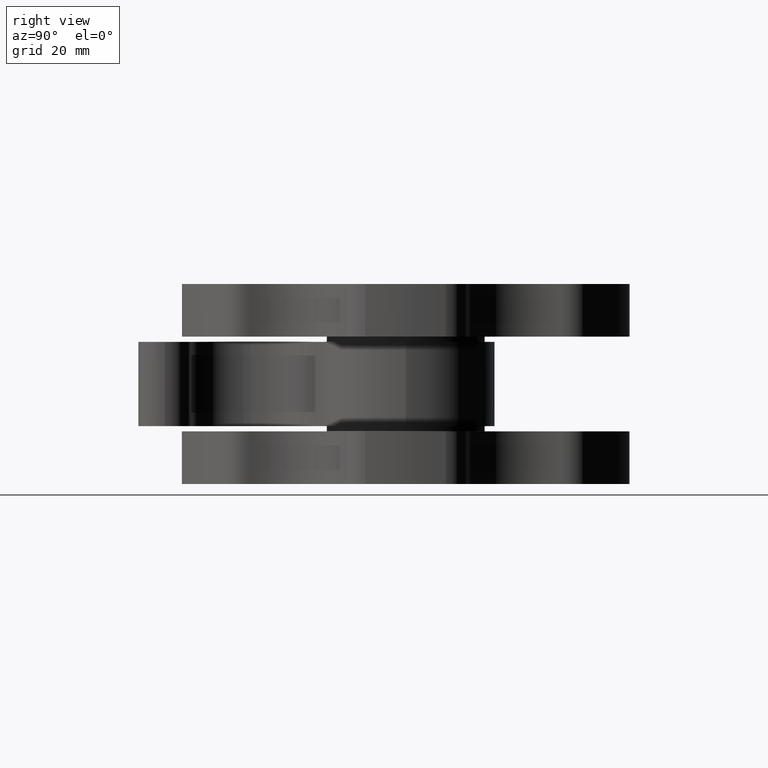
[diagram: clean part render]
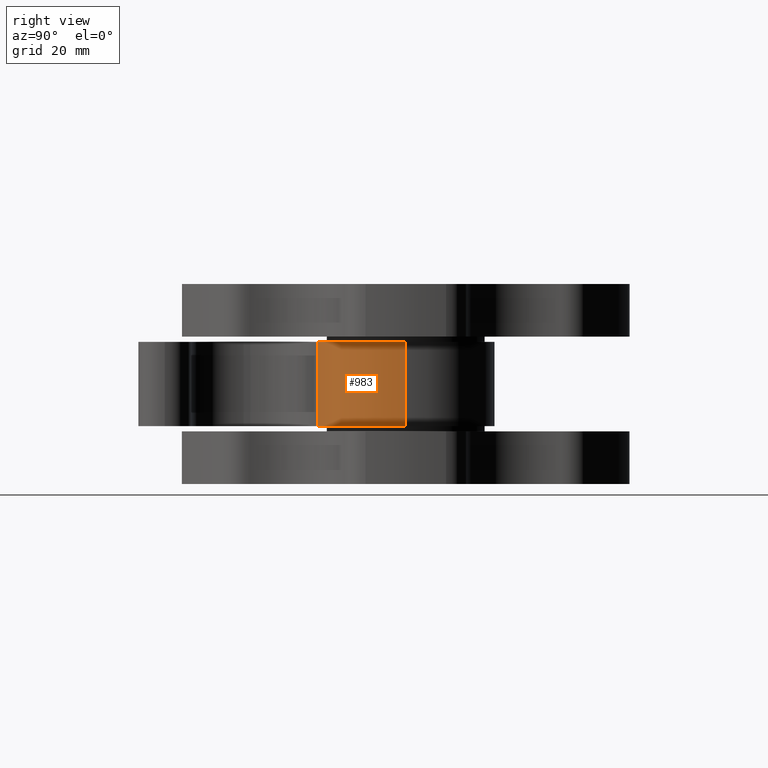
[diagram: same view with one face highlighted and labeled with its STEP entity id]
A machine part, right view. The second image highlights one B-rep face of the part: STEP entity #983.
In plain terms, the highlighted cylindrical surface (partial cylindrical patch) has radius 17 mm, axis along (0, 0, 1).
Its self-contained STEP definition (entity closure, byte-faithful):
#444 = VERTEX_POINT ( 'NONE', #18035 ) ;
#941 = DIRECTION ( 'NONE',  ( 0.0000000000000000000, 0.0000000000000000000, 1.000000000000000000 ) ) ;
#983 = ADVANCED_FACE ( 'NONE', ( #13436 ), #21729, .T. ) ;
#3540 = DIRECTION ( 'NONE',  ( 1.000000000000000000, 0.0000000000000000000, 0.0000000000000000000 ) ) ;
#3632 = CARTESIAN_POINT ( 'NONE',  ( 1.431146867680865900E-014, 2.135878279796443700E-014, 0.0000000000000000000 ) ) ;
#3714 = DIRECTION ( 'NONE',  ( -0.0000000000000000000, 0.0000000000000000000, 1.000000000000000000 ) ) ;
#4655 = CIRCLE ( 'NONE', #5284, 17.00000000000003600 ) ;
#5284 = AXIS2_PLACEMENT_3D ( 'NONE', #23054, #13152, #7117 ) ;
#6308 = DIRECTION ( 'NONE',  ( 0.0000000000000000000, 0.0000000000000000000, 1.000000000000000000 ) ) ;
#6331 = AXIS2_PLACEMENT_3D ( 'NONE', #12429, #6308, #3540 ) ;
#6800 = ORIENTED_EDGE ( 'NONE', *, *, #16178, .T. ) ;
#7117 = DIRECTION ( 'NONE',  ( 1.000000000000000000, 0.0000000000000000000, 0.0000000000000000000 ) ) ;
#7265 = ORIENTED_EDGE ( 'NONE', *, *, #22241, .T. ) ;
#8824 = AXIS2_PLACEMENT_3D ( 'NONE', #3632, #3714, #11752 ) ;
#11752 = DIRECTION ( 'NONE',  ( 1.000000000000000000, 0.0000000000000000000, 0.0000000000000000000 ) ) ;
#12362 = CIRCLE ( 'NONE', #8824, 17.00000000000003600 ) ;
#12429 = CARTESIAN_POINT ( 'NONE',  ( 1.431146867680865900E-014, 2.135878279796443700E-014, -16.00000000000000000 ) ) ;
#12741 = ORIENTED_EDGE ( 'NONE', *, *, #20441, .F. ) ;
#13152 = DIRECTION ( 'NONE',  ( -0.0000000000000000000, 0.0000000000000000000, 1.000000000000000000 ) ) ;
#13436 = FACE_OUTER_BOUND ( 'NONE', #17650, .T. ) ;
#14296 = LINE ( 'NONE', #21572, #23869 ) ;
#14462 = CARTESIAN_POINT ( 'NONE',  ( 17.00000000000005000, 2.135878279796443700E-014, 0.0000000000000000000 ) ) ;
#14479 = DIRECTION ( 'NONE',  ( 0.0000000000000000000, 0.0000000000000000000, 1.000000000000000000 ) ) ;
#15317 = VERTEX_POINT ( 'NONE', #14462 ) ;
#15369 = CARTESIAN_POINT ( 'NONE',  ( 2.398145116543167100, -16.83000000000002000, -16.00000000000000000 ) ) ;
#16178 = EDGE_CURVE ( 'NONE', #22982, #15317, #16191, .T. ) ;
#16191 = LINE ( 'NONE', #24370, #17492 ) ;
#16207 = CARTESIAN_POINT ( 'NONE',  ( 17.00000000000005000, 2.135878279796443700E-014, -16.00000000000000000 ) ) ;
#17492 = VECTOR ( 'NONE', #14479, 1000.000000000000000 ) ;
#17650 = EDGE_LOOP ( 'NONE', ( #7265, #6800, #12741, #26510 ) ) ;
#18035 = CARTESIAN_POINT ( 'NONE',  ( 2.398145116543167100, -16.83000000000002000, 0.0000000000000000000 ) ) ;
#19873 = EDGE_CURVE ( 'NONE', #21491, #444, #14296, .T. ) ;
#20441 = EDGE_CURVE ( 'NONE', #444, #15317, #12362, .T. ) ;
#21491 = VERTEX_POINT ( 'NONE', #15369 ) ;
#21572 = CARTESIAN_POINT ( 'NONE',  ( 2.398145116543167100, -16.83000000000002000, -16.00000000000000000 ) ) ;
#21729 = CYLINDRICAL_SURFACE ( 'NONE', #6331, 17.00000000000003600 ) ;
#22241 = EDGE_CURVE ( 'NONE', #21491, #22982, #4655, .T. ) ;
#22982 = VERTEX_POINT ( 'NONE', #16207 ) ;
#23054 = CARTESIAN_POINT ( 'NONE',  ( 1.431146867680865900E-014, 2.135878279796443700E-014, -16.00000000000000000 ) ) ;
#23869 = VECTOR ( 'NONE', #941, 1000.000000000000000 ) ;
#24370 = CARTESIAN_POINT ( 'NONE',  ( 17.00000000000005000, 2.135878279796443700E-014, -16.00000000000000000 ) ) ;
#26510 = ORIENTED_EDGE ( 'NONE', *, *, #19873, .F. ) ;